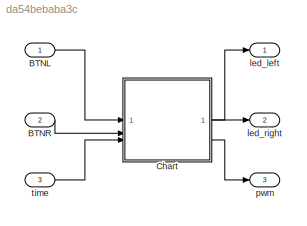
MODEL slx_da54bebaba3c
KIND model
CONFIG AbsTol = auto
CONFIG EnableMultiTasking = off
CONFIG FixedStep = 0.1
CONFIG MaxStep = auto
CONFIG MinStep = auto
CONFIG RelTol = 1e-3
CONFIG SampleTimeConstraint = Unconstrained
CONFIG SolverName = FixedStepDiscrete
CONFIG StartTime = 0.0
CONFIG StopTime = inf
BLOCK [Inport] BTNL
  OutDataTypeStr = uint8
BLOCK [Inport] BTNR
  OutDataTypeStr = uint8
  Port = 2
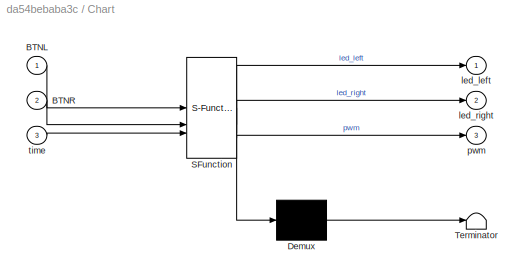
BLOCK [SubSystem] Chart
  ErrorFcn = Stateflow.Translate.translate
  PermitHierarchicalResolution = ExplicitOnly
  SFBlockType = Chart
  TreatAsAtomicUnit = on
BLOCK [Demux] Chart/ Demux 
  Outputs = 1
BLOCK [S-Function] Chart/ SFunction 
  EnableBusSupport = off
  FunctionName = sf_sfun
  PortCounts = [3 4]
  SFcnIsStateOwnerBlock = off
  SFunctionDeploymentMode = off
  Tag = Stateflow S-Function 3
BLOCK [Terminator] Chart/ Terminator 
BLOCK [Inport] Chart/BTNL
BLOCK [Inport] Chart/BTNR
  Port = 2
BLOCK [Outport] Chart/led_left
BLOCK [Outport] Chart/led_right
  Port = 2
BLOCK [Outport] Chart/pwm
  Port = 3
BLOCK [Inport] Chart/time
  Port = 3
BLOCK [Outport] led_left
  OutDataTypeStr = uint8
BLOCK [Outport] led_right
  OutDataTypeStr = uint8
  Port = 2
BLOCK [Outport] pwm
  OutDataTypeStr = uint8
  Port = 3
BLOCK [Inport] time
  OutDataTypeStr = uint32
  Port = 3
LINE BTNL:1 -> Chart:1
LINE BTNR:1 -> Chart:2
LINE Chart:1 -> led_left:1
LINE Chart:2 -> led_right:1
LINE Chart:3 -> pwm:1
LINE time:1 -> Chart:3
CHART Chart states=12 transitions=29
  STATE_LABEL 'Right\nled_left = 0;\nled_right=1;\npwm=1;'
  STATE_LABEL 'Hold_1\nentry:\nentry_time = time;\n'
  STATE_LABEL 'Hold_3\nentry:\nentry_time = time;\n'
  STATE_LABEL 'Idle\nled_left = 0;\nled_right = 0;\npwm = 0;\n'
  STATE_LABEL 'Hold_5\nentry:\nentry_time = time;\n'
  STATE_LABEL 'Hold_6\nentry:\nentry_time = time;\n'
  STATE_LABEL 'Hold_7\nentry:\nentry_time = time;\n'
  STATE_LABEL 'Hold_8\nentry:\nentry_time = time;\n'
  STATE_LABEL 'Left\nled_left = 1;\nled_right=0;\npwm=1;'
  STATE_LABEL 'Hold_2\nentry:\nentry_time = time;\n'
  STATE_LABEL 'Hold_4\nentry:\nentry_time = time;'
  STATE_LABEL 'Hazard\nled_left = 1;\nled_right=1;\npwm=1;'
CHART  states=0 transitions=0
